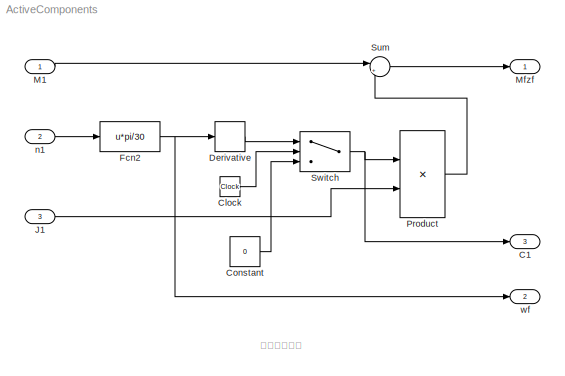
MODEL ActiveComponents
KIND model
BLOCK [Outport] C1
  IconDisplay = Port number
  Port = 3
  SID = 10
BLOCK [Clock] Clock
  SID = 5
BLOCK [Constant] Constant
  SID = 4
  Value = 0
BLOCK [Derivative] Derivative
  SID = 14
BLOCK [Fcn] Fcn2
  Expr = u*pi/30
  SID = 15
BLOCK [Inport] J1
  IconDisplay = Port number
  Port = 3
  SID = 3
BLOCK [Inport] M1
  IconDisplay = Port number
  SID = 1
BLOCK [Outport] Mfzf
  IconDisplay = Port number
  SID = 6
BLOCK [Product] Product
  InputSameDT = off
  OutDataTypeStr = Inherit: Inherit via internal rule
  Ports = [2, 1]
  RndMeth = Floor
  SID = 11
  SaturateOnIntegerOverflow = off
BLOCK [Sum] Sum
  IconShape = round
  InputSameDT = off
  Inputs = |+-
  OutDataTypeStr = Inherit: Inherit via internal rule
  Ports = [2, 1]
  SID = 12
  SaturateOnIntegerOverflow = off
BLOCK [Switch] Switch
  Criteria = u2 > Threshold
  InputSameDT = off
  SID = 13
  SaturateOnIntegerOverflow = off
BLOCK [Inport] n1
  IconDisplay = Port number
  Port = 2
  SID = 2
BLOCK [Outport] wf
  IconDisplay = Port number
  Port = 2
  SID = 9
ANNOTATION (root): \n \n 主动件
LINE Clock:1 -> Switch:2
LINE Constant:1 -> Switch:3
LINE Derivative:1 -> Switch:1
NET Fcn2:1 -> Derivative:1, wf:1
LINE J1:1 -> Product:2
LINE M1:1 -> Sum:1
LINE Product:1 -> Sum:2
LINE Sum:1 -> Mfzf:1
NET Switch:1 -> C1:1, Product:1
LINE n1:1 -> Fcn2:1
note: NET lines group one-source signal fan-out (src -> all destinations, sorted); 1:1 wires keep LINE
